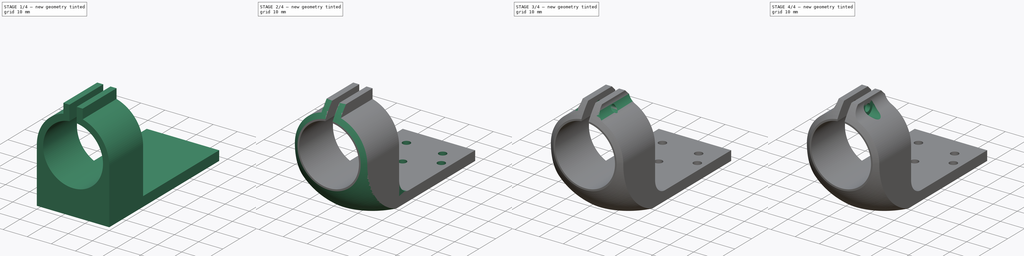
[diagram: build sequence overview — one tinted view per stage of 4, left to right]
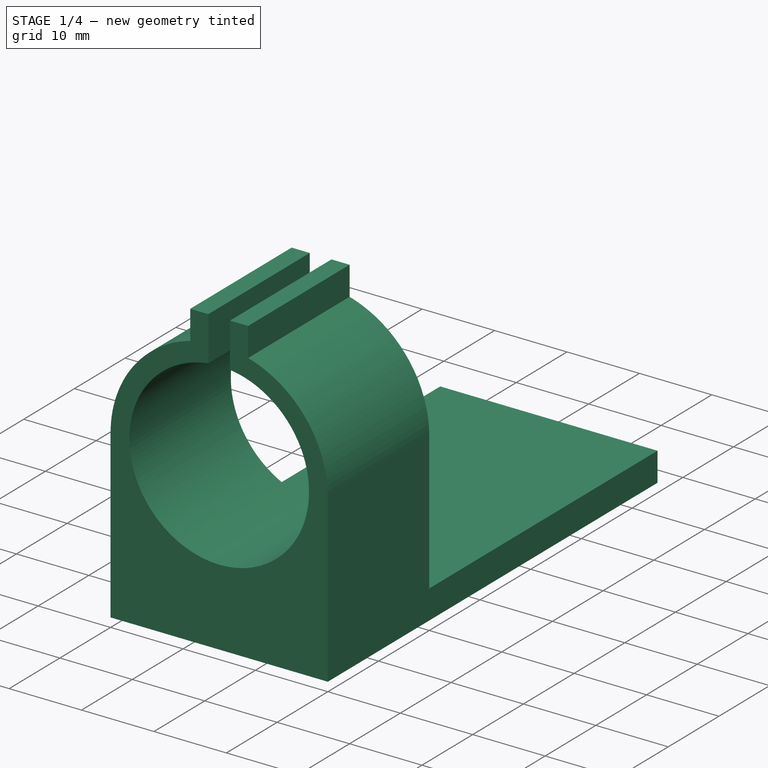
[diagram: stage 1 of 4 — iso view after this stage's code; geometry added in this stage tinted green]
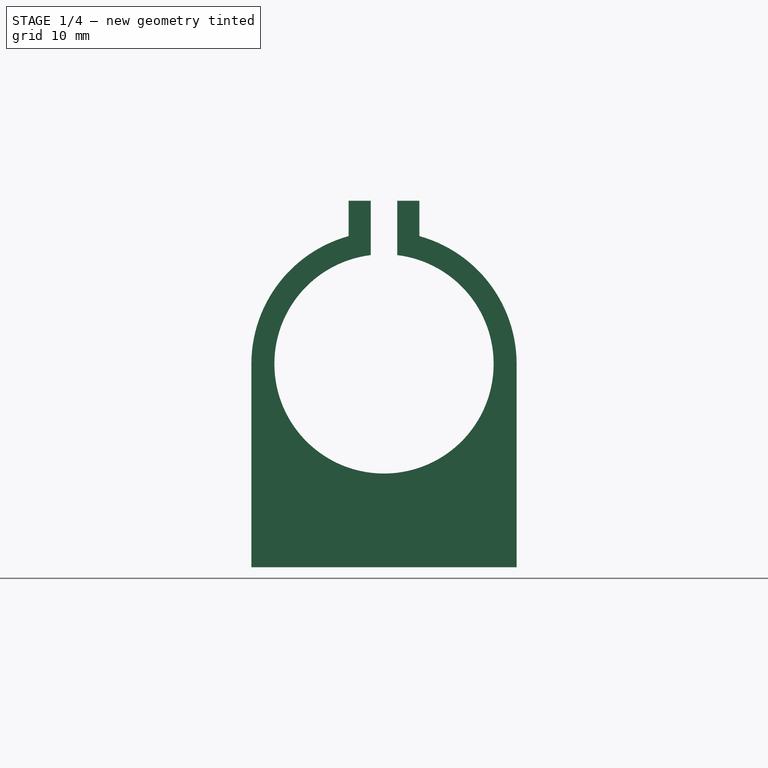
[diagram: stage 1 of 4 — front view after this stage's code; geometry added in this stage tinted green]
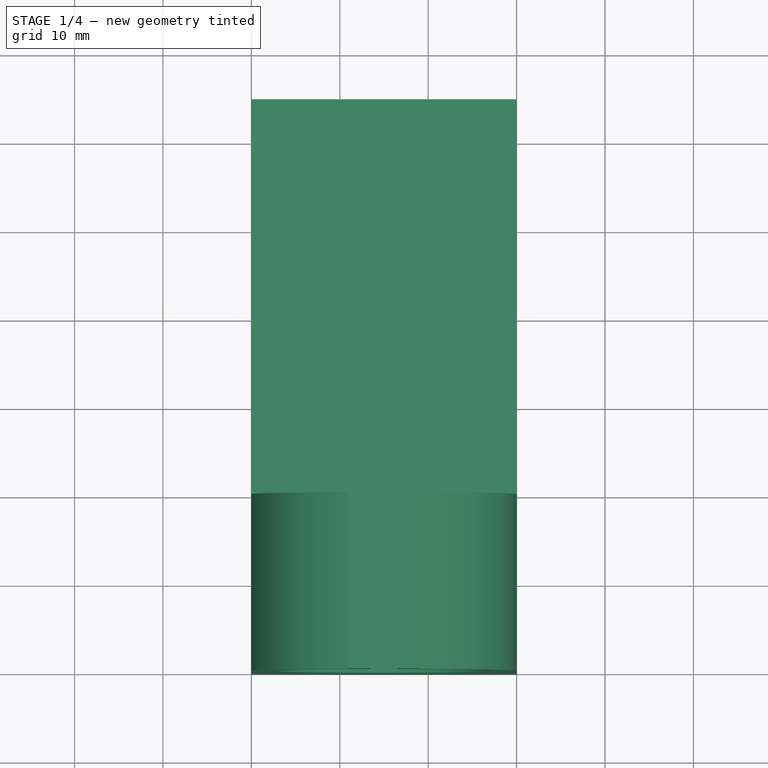
[diagram: stage 1 of 4 — top view after this stage's code; geometry added in this stage tinted green]
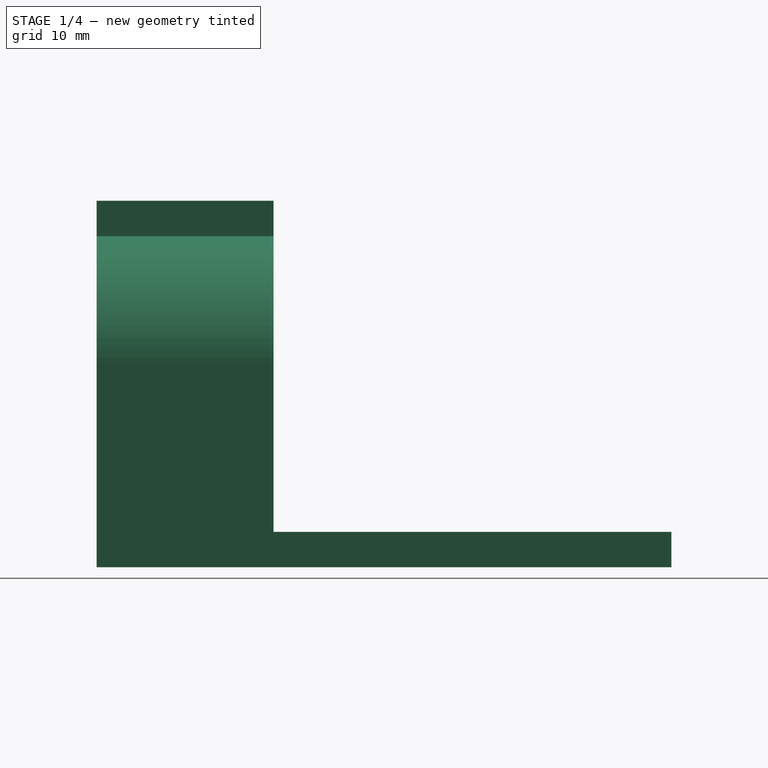
[diagram: stage 1 of 4 — right view after this stage's code; geometry added in this stage tinted green]
FCSTD DOCUMENT  (FreeCAD 0.18R16110 (Git))
Label: Soporte_Motor_V
License: All rights reserved
LicenseURL: http://en.wikipedia.org/wiki/All_rights_reserved
objects: Sketcher::SketchObject×7, PartDesign::Pocket×4, PartDesign::Pad×2, PartDesign::Fillet×2, PartDesign::Plane×1, PartDesign::Line×1, PartDesign::Groove×1, PartDesign::Chamfer×1, PartDesign::Body×1
note: 27 computed .brp shape members not serialized (recipe doc carries the construction recipe); baked Part::Feature solids carry a one-line shape summary decoded from their .brp

FEATURE [Sketcher::SketchObject] Sketch152
  MapMode = 5
  sketch-geometry (4):
    g0: LineSegment StartX=0 StartY=0 StartZ=0 EndX=30 EndY=0 EndZ=0
    g1: LineSegment StartX=30 StartY=0 StartZ=0 EndX=30 EndY=45 EndZ=0
    g2: LineSegment StartX=30 StartY=45 StartZ=0 EndX=0 EndY=45 EndZ=0
    g3: LineSegment StartX=0 StartY=45 StartZ=0 EndX=0 EndY=0 EndZ=0
  constraints (11):
    c: Coincident(g0,g1)
    c: Coincident(g1,g2)
    c: Coincident(g2,g3)
    c: Coincident(g3,g0)
    c: Horizontal(g0)
    c: Horizontal(g2)
    c: Vertical(g1)
    c: Vertical(g3)
    c: DistanceX(g0,g0) = 30
    c: DistanceY(g1,g1) = 45
    c: Coincident(g0,g-1)
FEATURE [PartDesign::Pad] Pad076
  Length = 4
  Length2 = 100
  Profile = -> Sketch152
  Type = 0
FEATURE [Sketcher::SketchObject] Sketch153
  MapMode = 5
  Placement = pos=(0,0,0) rot=(1,0,0;1.5708rad)
  Support = -> [Pad076]
  sketch-geometry (14):
    g0: ArcOfCircle CenterX=15 CenterY=23 CenterZ=0 NormalX=0 NormalY=0 NormalZ=1 AngleXU=0 Radius=15 StartAngle=6.28319 EndAngle=7.58405
    g1: LineSegment StartX=0 StartY=0 StartZ=0 EndX=0 EndY=23 EndZ=0
    g2: LineSegment StartX=30 StartY=23 StartZ=0 EndX=30 EndY=0 EndZ=0
    g3: LineSegment StartX=19 StartY=37.4568 StartZ=0 EndX=19 EndY=41.4568 EndZ=0
    g4: LineSegment StartX=19 StartY=41.4568 StartZ=0 EndX=16.5 EndY=41.4568 EndZ=0
    g5: LineSegment StartX=11 StartY=41.4568 StartZ=0 EndX=11 EndY=37.4568 EndZ=0
    g6: LineSegment StartX=16.5 StartY=35.3089 StartZ=0 EndX=16.5 EndY=41.4568 EndZ=0
    g7: LineSegment StartX=13.5 StartY=41.4568 StartZ=0 EndX=13.5 EndY=35.3089 EndZ=0
    g8: LineSegment [constr] StartX=15 StartY=41.4568 StartZ=0 EndX=15 EndY=23 EndZ=0
    g9: ArcOfCircle CenterX=15 CenterY=23 CenterZ=0 NormalX=0 NormalY=0 NormalZ=1 AngleXU=0 Radius=15 StartAngle=1.84073 EndAngle=3.14159
    g10: GeomPoint X=19 Y=37.4568 Z=0
    g11: LineSegment StartX=13.5 StartY=41.4568 StartZ=0 EndX=11 EndY=41.4568 EndZ=0
    g12: ArcOfCircle CenterX=15 CenterY=23 CenterZ=0 NormalX=0 NormalY=0 NormalZ=1 AngleXU=0 Radius=12.4 StartAngle=1.69206 EndAngle=7.73272
    g13: LineSegment StartX=0 StartY=0 StartZ=0 EndX=30 EndY=0 EndZ=0
  constraints (38):
    c: Diameter(g0) = 30
    c: Tangent(g1,g0)
    c: Coincident(g1,g-1)
    c: PointOnObject(g2,g-1)
    c: Vertical(g2)
    c: Tangent(g2,g0)
    c: Coincident(g0,g2)
    c: Coincident(g3,g4)
    c: Coincident(g11,g5)
    c: Horizontal(g4)
    c: Vertical(g3)
    c: Vertical(g5)
    c: Vertical(g6)
    c: Vertical(g7)
    c: Vertical(g8)
    c: Symmetric(g11,g3,g8)
    c: DistanceX(g11,g3) = 8
    c: DistanceX(g7,g6) = 3
    c: Coincident(g0,g9)
    c: Coincident(g5,g9)
    c: PointOnObject(g10,g3)
    c: PointOnObject(g10,g0)
    c: Tangent(g4,g11)
    c: Coincident(g11,g7)
    c: Symmetric(g7,g4,g8)
    c: Vertical(g1)
    c: Coincident(g3,g0)
    c: Coincident(g12,g0)
    c: Coincident(g12,g7)
    c: Coincident(g12,g6)
    c: Diameter(g12) = 24.8
    c: Coincident(g8,g0)
    c: Tangent(g9,g1) = 1.5708
    c: DistanceY(g0,g3) = 4
    c: DistanceY(g1,g0) = 23
    c: Coincident(g6,g4)
    c: Coincident(g13,g2)
    c: Coincident(g13,g1)
FEATURE [PartDesign::Pad] Pad077
  BaseFeature = -> Pad076
  Length = 20
  Length2 = 100
  Profile = -> Sketch153
  Type = 0
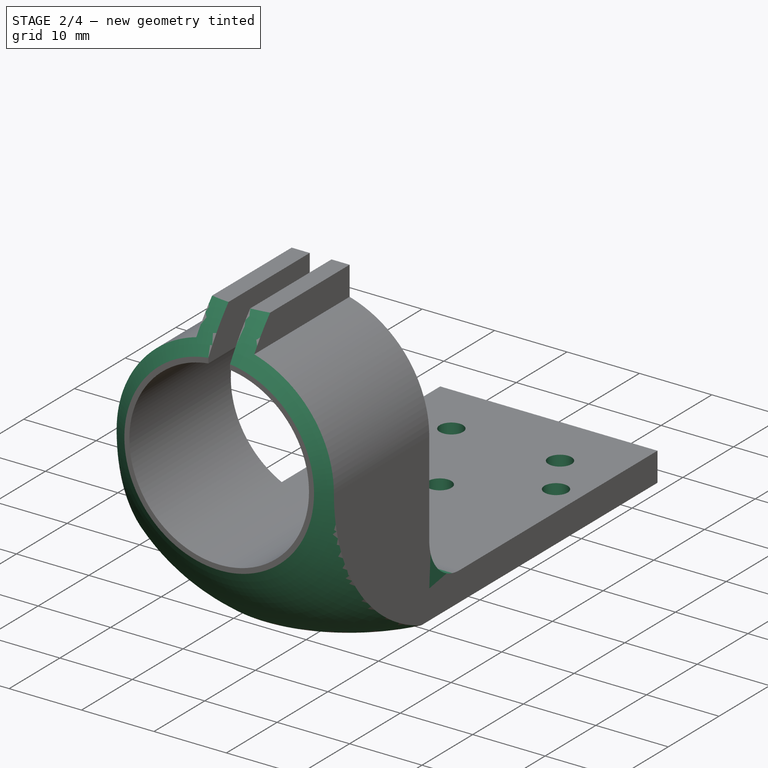
[diagram: stage 2 of 4 — iso view after this stage's code; geometry added in this stage tinted green]
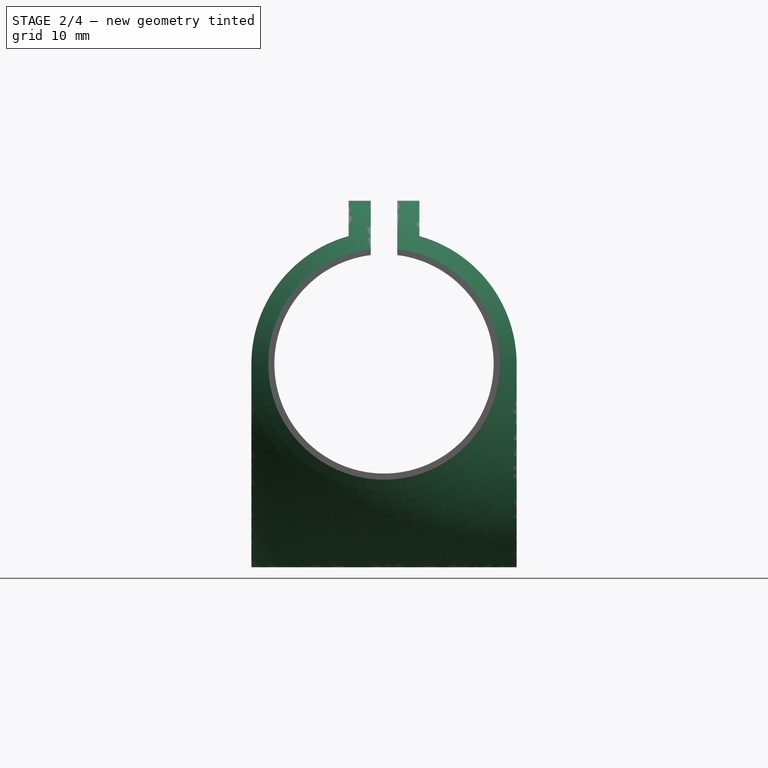
[diagram: stage 2 of 4 — front view after this stage's code; geometry added in this stage tinted green]
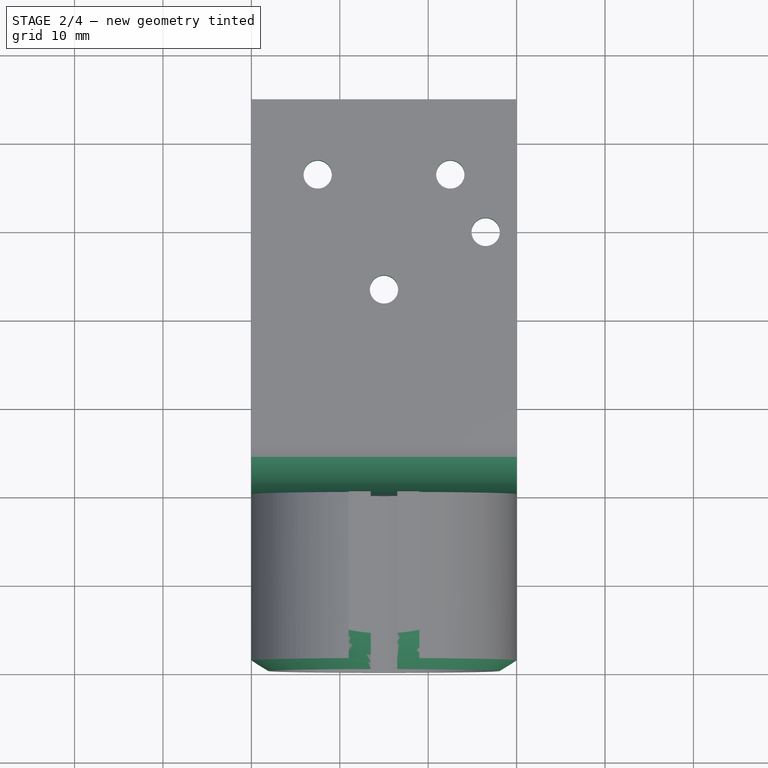
[diagram: stage 2 of 4 — top view after this stage's code; geometry added in this stage tinted green]
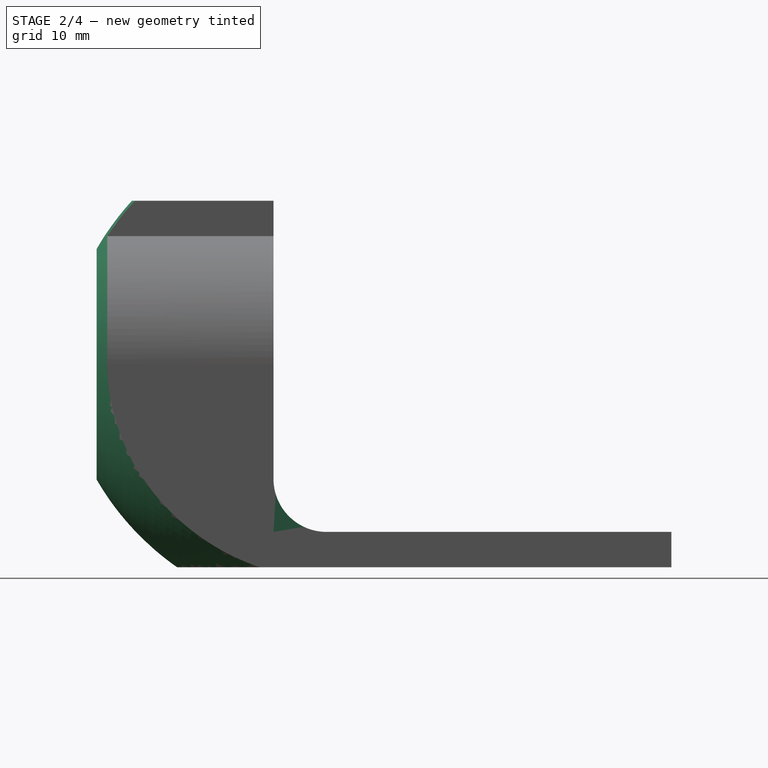
[diagram: stage 2 of 4 — right view after this stage's code; geometry added in this stage tinted green]
FEATURE [Sketcher::SketchObject] Sketch159
  MapMode = 5
  Placement = pos=(0,0,4) rot=(0,0,1;0rad)
  sketch-geometry (8):
    g0: Circle CenterX=7.5 CenterY=36.5 CenterZ=0 NormalX=0 NormalY=0 NormalZ=1 AngleXU=0 Radius=1.6
    g1: Circle CenterX=15 CenterY=23.5 CenterZ=0 NormalX=0 NormalY=0 NormalZ=1 AngleXU=0 Radius=1.6
    g2: LineSegment [constr] StartX=7.5 StartY=36.5 StartZ=0 EndX=15 EndY=23.5 EndZ=0
    g3: Circle CenterX=22.5 CenterY=36.5 CenterZ=0 NormalX=0 NormalY=0 NormalZ=1 AngleXU=0 Radius=1.6
    g4: LineSegment [constr] StartX=7.5 StartY=36.5 StartZ=0 EndX=22.5 EndY=36.5 EndZ=0
    g5: LineSegment [constr] StartX=22.5 StartY=36.5 StartZ=0 EndX=15 EndY=23.5 EndZ=0
    g6: LineSegment [constr] StartX=15 StartY=23.5 StartZ=0 EndX=15 EndY=36.5 EndZ=0
    g7: Circle CenterX=26.5 CenterY=30 CenterZ=0 NormalX=0 NormalY=0 NormalZ=1 AngleXU=0 Radius=1.6
  constraints (15):
    c: Coincident(g2,g0)
    c: Coincident(g2,g1)
    c: Diameter(g0) = 3.2
    c: Diameter(g1) = 3.2
    c: Diameter(g3) = 3.2
    c: Coincident(g5,g4)
    c: Coincident(g4,g0)
    c: Coincident(g5,g1)
    c: Coincident(g4,g3)
    c: Distance(g4) = 15
    c: Horizontal(g4)
    c: Perpendicular(g6,g4)
    c: Coincident(g6,g1)
    c: Symmetric(g0,g3,g6)
    c: Diameter(g7) = 3.2
FEATURE [PartDesign::Pocket] Pocket059
  BaseFeature = -> Pad077
  Length = 5
  Length2 = 100
  Profile = -> Sketch159
  Type = 0
FEATURE [PartDesign::Plane] DatumPlane001
  AttachmentOffset = pos=(0,0,1.5) rot=(0,0,1;0rad)
  Length = 76.5667
  MapMode = 5
  Placement = pos=(15,0,0) rot=(0.57735,-0.57735,-0.57735;2.0944rad)
  ResizeMode = 0
  Support = -> [Pocket059]
  Width = 63.0235
FEATURE [Sketcher::SketchObject] Sketch164
  ExternalGeometry = -> [Pocket059]
  MapMode = 5
  Placement = pos=(15,0,0) rot=(0.57735,-0.57735,-0.57735;2.0944rad)
  Support = -> [DatumPlane001]
  sketch-geometry (5):
    g0: LineSegment StartX=42.6031 StartY=23.22 StartZ=0 EndX=24.1007 EndY=23.22 EndZ=0
    g1: LineSegment StartX=42.6031 StartY=23.22 StartZ=0 EndX=35.0738 EndY=59.2644 EndZ=0
    g2: LineSegment StartX=-2.09355 StartY=59.2644 StartZ=0 EndX=35.0738 EndY=59.2644 EndZ=0
    g3: LineSegment StartX=-2.09355 StartY=59.2644 StartZ=0 EndX=-2.09355 EndY=51.2684 EndZ=0
    g4: ArcOfCircle CenterX=-7.04593 CenterY=20.3879 CenterZ=0 NormalX=0 NormalY=0 NormalZ=1 AngleXU=0 Radius=31.2751 StartAngle=0.0906787 EndAngle=1.41178
  constraints (8):
    c: Coincident(g3,g2)
    c: Horizontal(g2)
    c: Coincident(g1,g2)
    c: Coincident(g0,g1)
    c: Horizontal(g0)
    c: Vertical(g3)
    c: Coincident(g4,g0)
    c: Coincident(g3,g4)
FEATURE [PartDesign::Line] DatumLine001
  AttacherType = Attacher::AttachEngineLine
  AttachmentOffset = pos=(-15,0,0) rot=(0,0,1;0rad)
  MapMode = 29
  Placement = pos=(15,4.1e-15,23) rot=(1,0,0;1.5708rad)
  Support = -> [Pocket059]
FEATURE [PartDesign::Groove] Groove
  Angle = 360
  Axis = (0,-1,2e-16)
  Base = (15,4.1e-15,23)
  BaseFeature = -> Pocket059
  Profile = -> Sketch164
  ReferenceAxis = -> DatumLine001
FEATURE [PartDesign::Fillet] Fillet
  Base = -> Groove [Edge18]
  BaseFeature = -> Groove
  Radius = 6
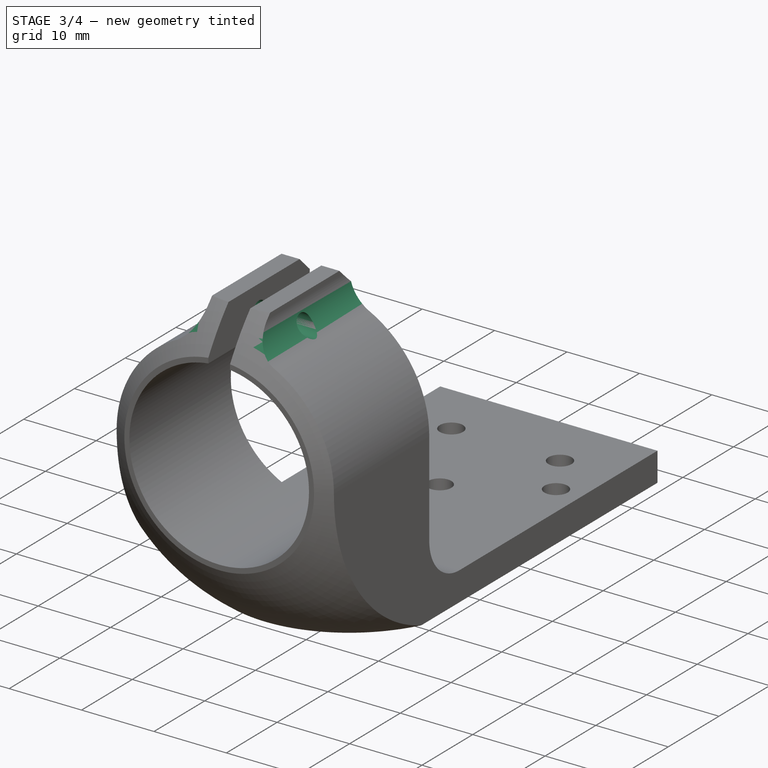
[diagram: stage 3 of 4 — iso view after this stage's code; geometry added in this stage tinted green]
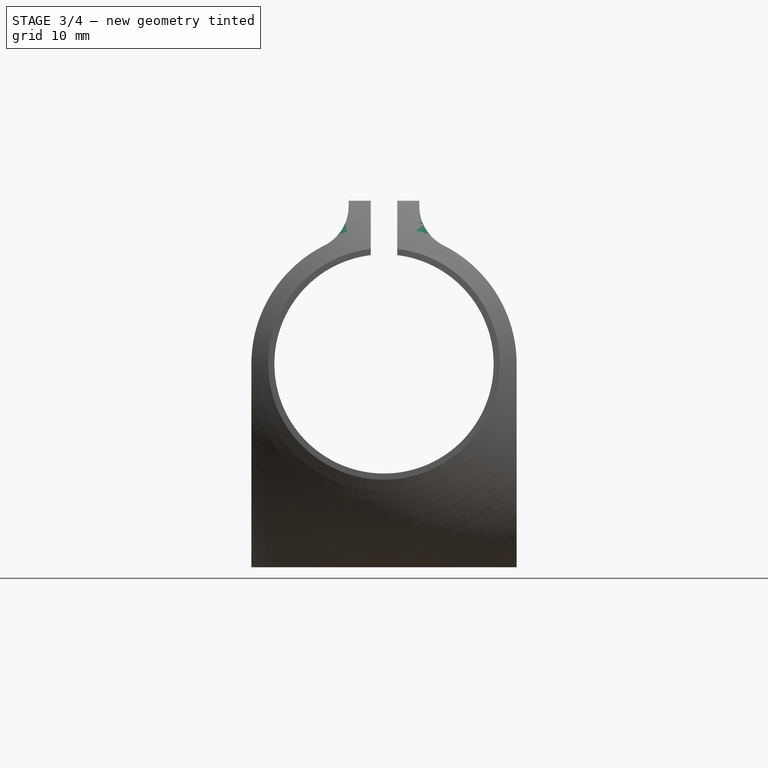
[diagram: stage 3 of 4 — front view after this stage's code; geometry added in this stage tinted green]
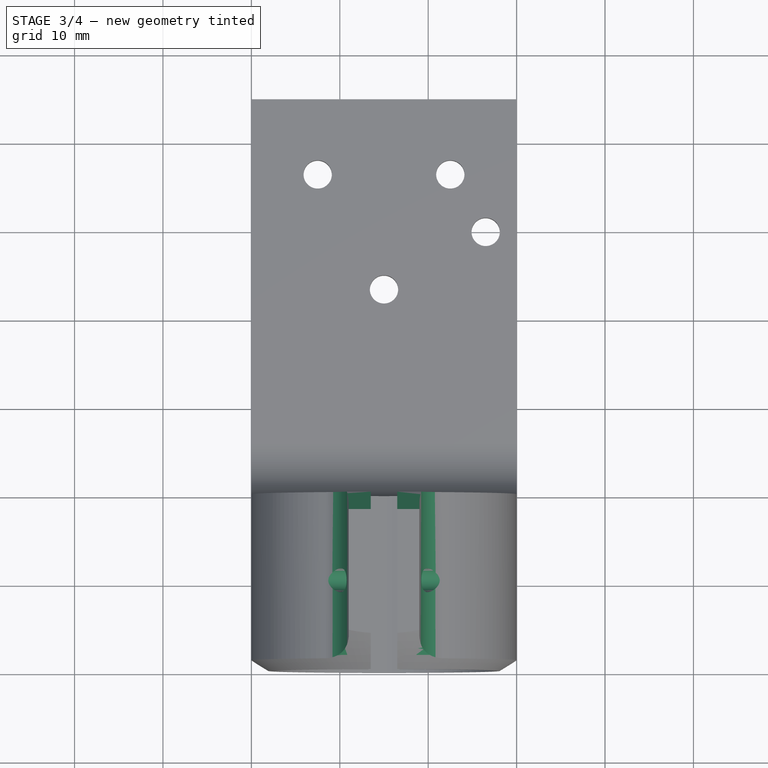
[diagram: stage 3 of 4 — top view after this stage's code; geometry added in this stage tinted green]
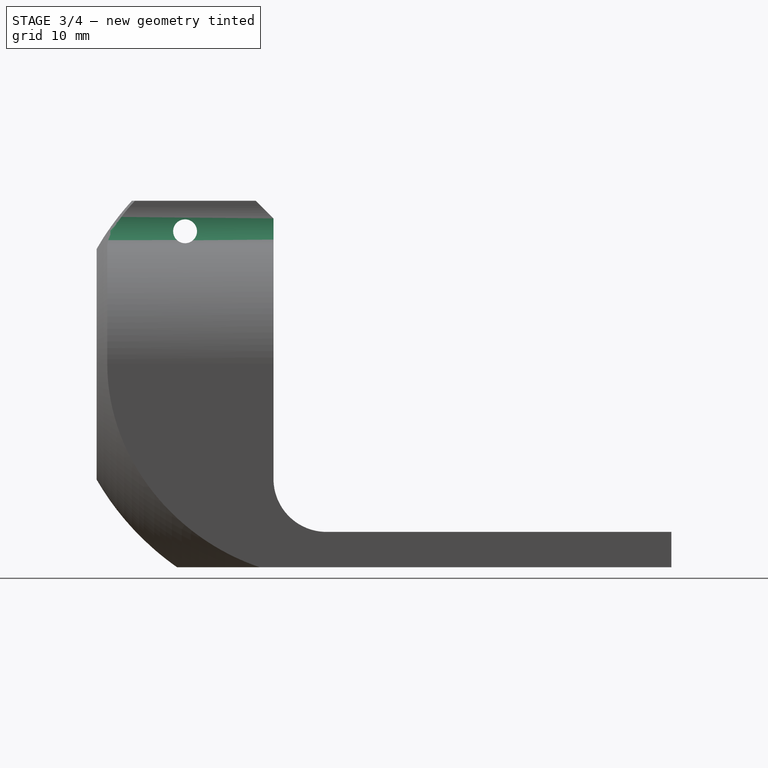
[diagram: stage 3 of 4 — right view after this stage's code; geometry added in this stage tinted green]
FEATURE [PartDesign::Chamfer] Chamfer
  Base = -> Fillet [Edge38,Edge41]
  BaseFeature = -> Fillet
  Size = 2
FEATURE [PartDesign::Fillet] Fillet001
  Base = -> Chamfer [Edge14,Edge45]
  BaseFeature = -> Chamfer
  Radius = 5
FEATURE [Sketcher::SketchObject] Sketch
  MapMode = 5
  Placement = pos=(19,0,0) rot=(0.57735,0.57735,0.57735;2.0944rad)
  Support = -> [Fillet001]
  sketch-geometry (1):
    g0: Circle CenterX=-10 CenterY=38 CenterZ=0 NormalX=0 NormalY=0 NormalZ=1 AngleXU=0 Radius=1.35
  constraints (3):
    c: Diameter(g0) = 2.7
    c: DistanceX(g0,g-1) = 10
    c: DistanceY(g-1,g0) = 38
FEATURE [PartDesign::Pocket] Pocket
  BaseFeature = -> Fillet001
  Length = 5
  Length2 = 100
  Midplane = true
  Profile = -> Sketch
  Type = 1
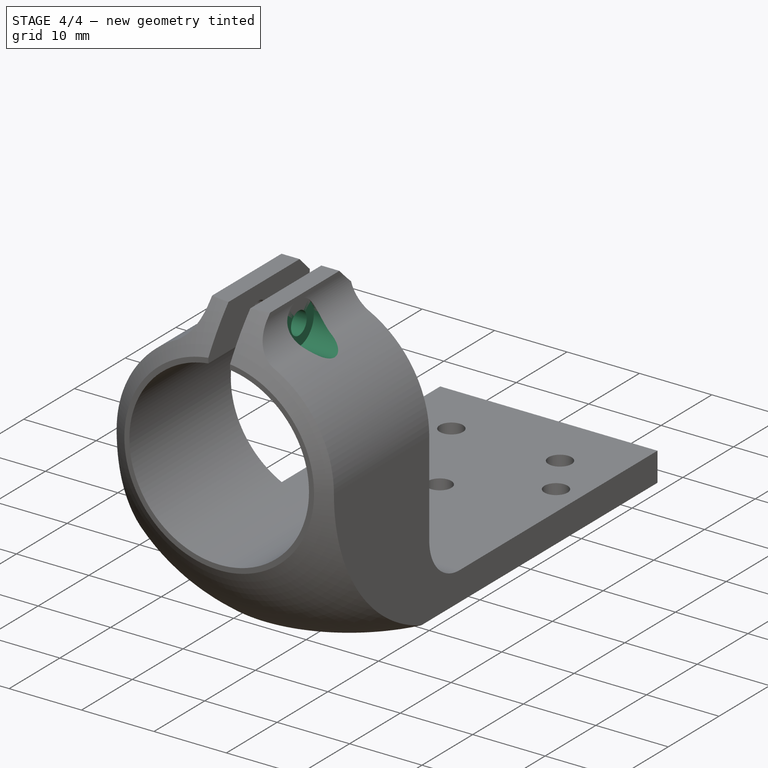
[diagram: stage 4 of 4 — iso view after this stage's code; geometry added in this stage tinted green]
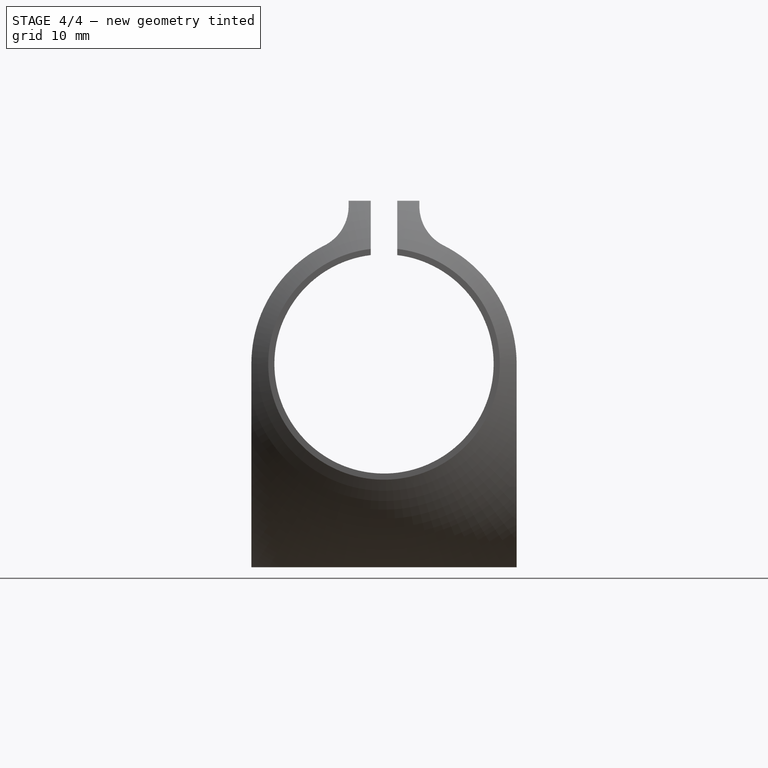
[diagram: stage 4 of 4 — front view after this stage's code; geometry added in this stage tinted green]
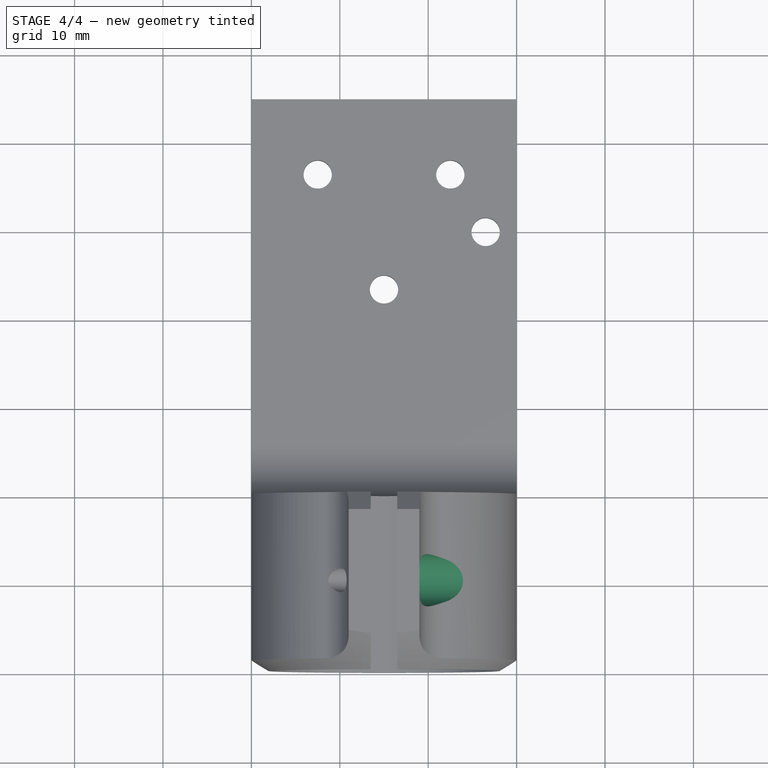
[diagram: stage 4 of 4 — top view after this stage's code; geometry added in this stage tinted green]
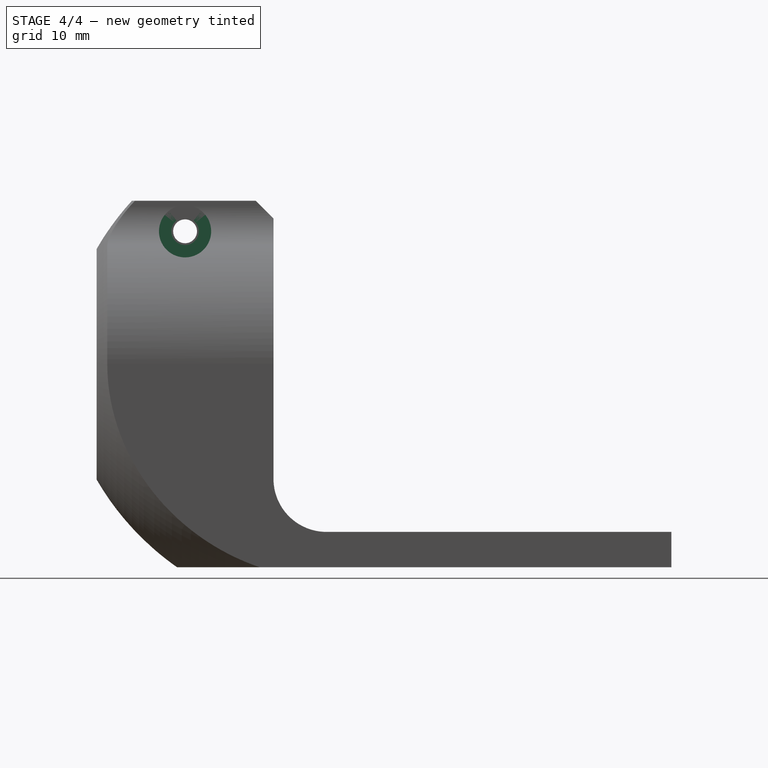
[diagram: stage 4 of 4 — right view after this stage's code; geometry added in this stage tinted green]
FEATURE [Sketcher::SketchObject] Sketch165
  ExternalGeometry = -> [Pocket]
  MapMode = 5
  Placement = pos=(19,0,0) rot=(0.57735,0.57735,0.57735;2.0944rad)
  Support = -> [Pocket]
  sketch-geometry (1):
    g0: Circle CenterX=-10 CenterY=38 CenterZ=0 NormalX=0 NormalY=0 NormalZ=1 AngleXU=0 Radius=2.95
  constraints (2):
    c: Diameter(g0) = 5.9
    c: Coincident(g0,g-3)
FEATURE [PartDesign::Pocket] Pocket060
  BaseFeature = -> Pocket
  Length = 5
  Length2 = 100
  Profile = -> Sketch165
  Reversed = true
  Type = 0
FEATURE [Sketcher::SketchObject] Sketch166
  ExternalGeometry = -> [Pocket060]
  MapMode = 5
  Placement = pos=(19,0,0) rot=(0.57735,0.57735,0.57735;2.0944rad)
  Support = -> [Pocket060]
  sketch-geometry (1):
    g0: Circle CenterX=-10 CenterY=38 CenterZ=0 NormalX=0 NormalY=0 NormalZ=1 AngleXU=0 Radius=1.55
  constraints (2):
    c: Coincident(g0,g-3)
    c: Diameter(g0) = 3.1
FEATURE [PartDesign::Pocket] Pocket061
  BaseFeature = -> Pocket060
  Length = 0
  Length2 = 100
  Profile = -> Sketch166
  Type = 3
  UpToFace = -> Pocket060 [Face8]
FEATURE [PartDesign::Body] Body061  label="Soporte_Vertical_z"
  Group = -> [Pad076,Sketch152,Sketch153,Pad077,Sketch159,Pocket059,DatumPlane001,DatumLine001,Sketch164,Groove,Fillet,Chamfer,Fillet001,Sketch,Pocket,Sketch165,Pocket060,Sketch166,Pocket061]
  Origin = -> Origin061
  Placement = pos=(0,0,0) rot=(0.57735,-0.57735,0.57735;4.18879rad)
  Tip = -> Pocket061
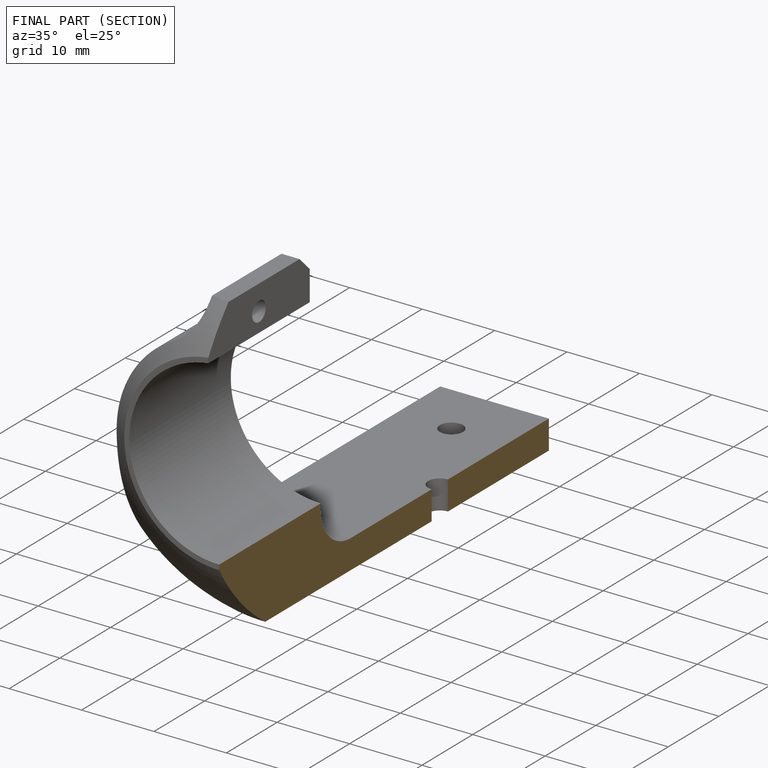
[diagram: finished part — half-section view (interior)]
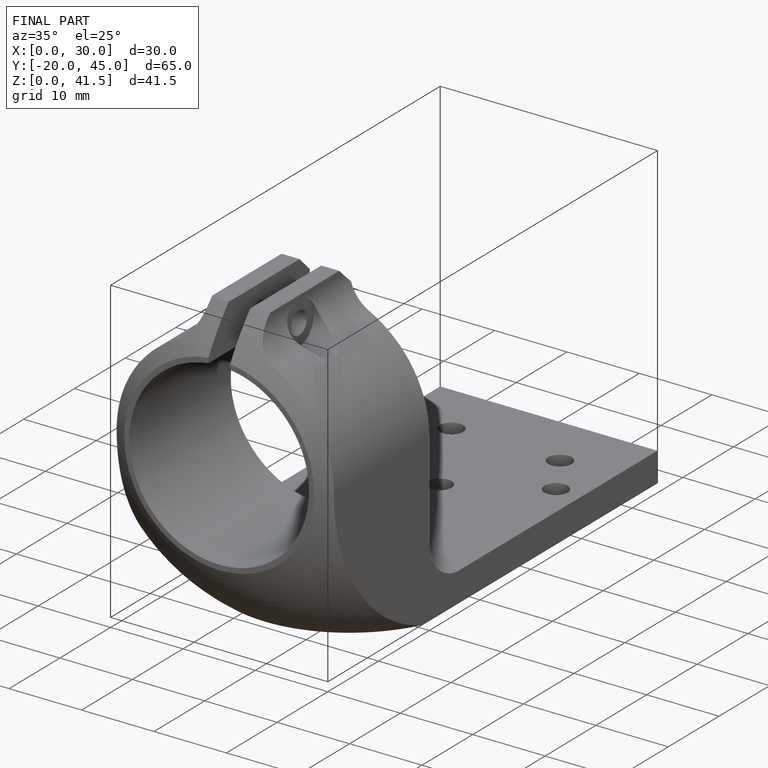
[diagram: finished part — iso view with bounding-box wireframe]
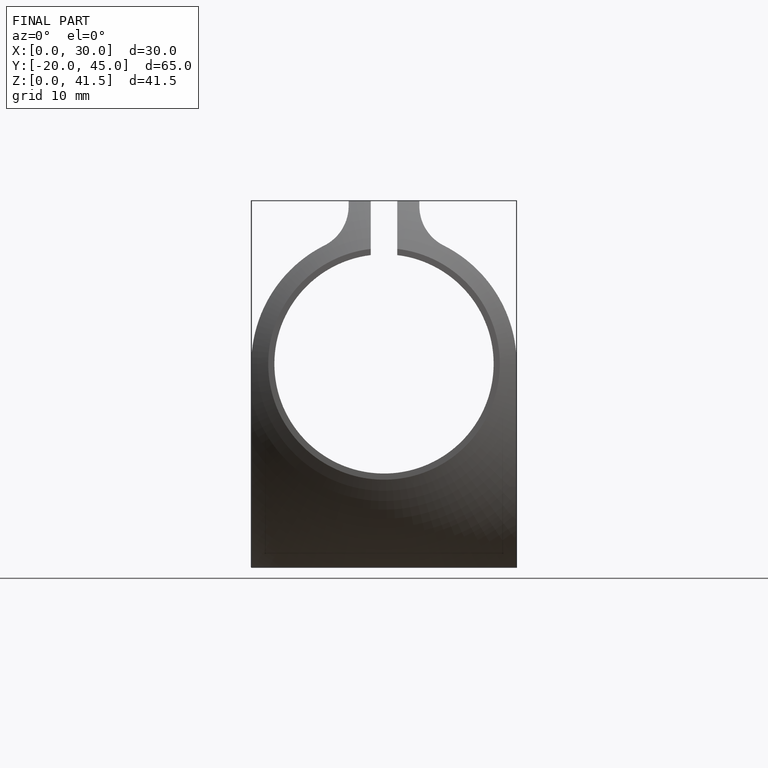
[diagram: finished part — front view with bounding-box wireframe]
